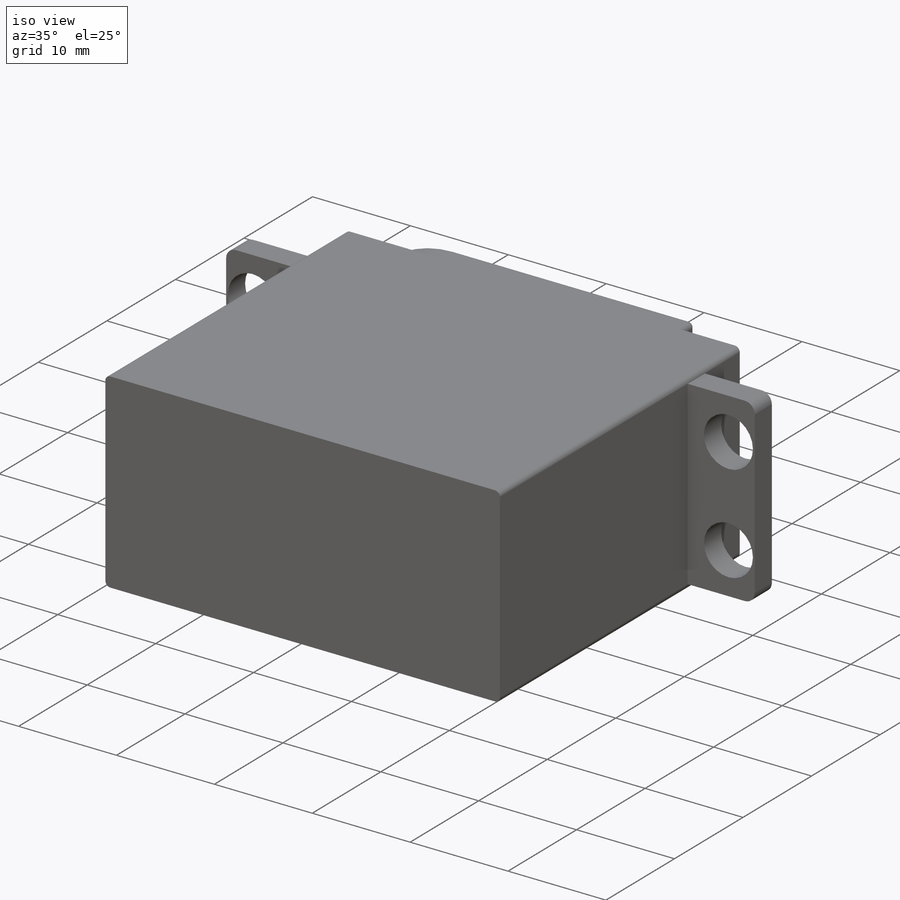
[diagram: iso view]
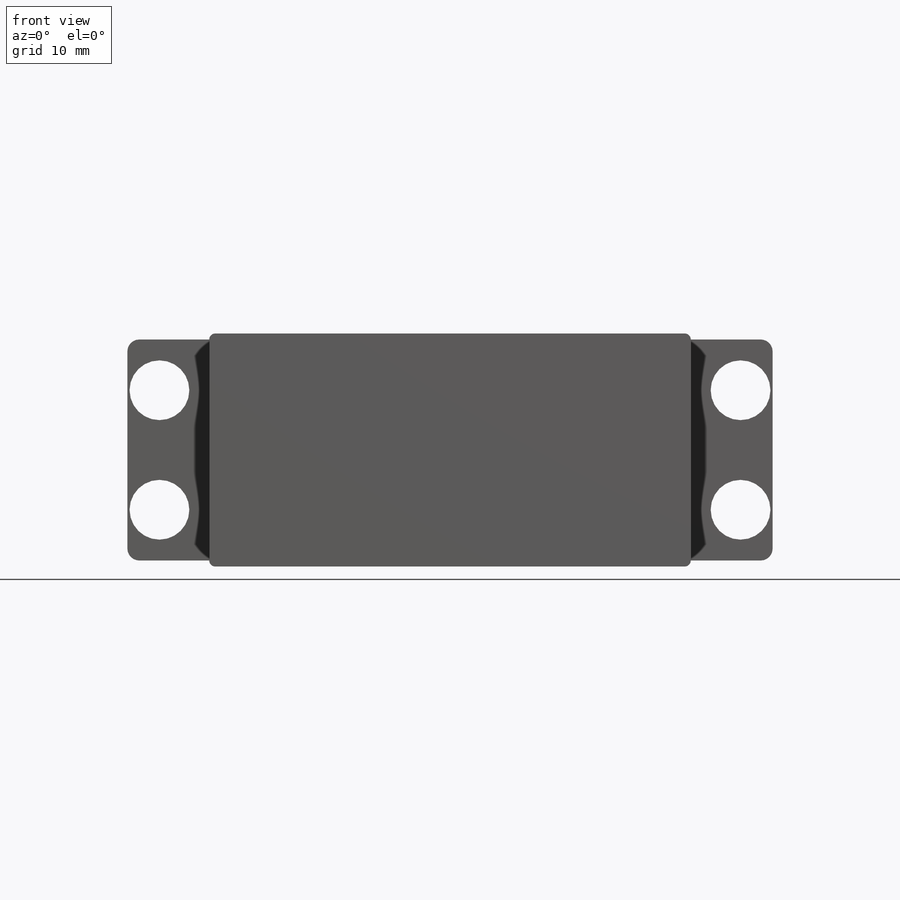
[diagram: front view]
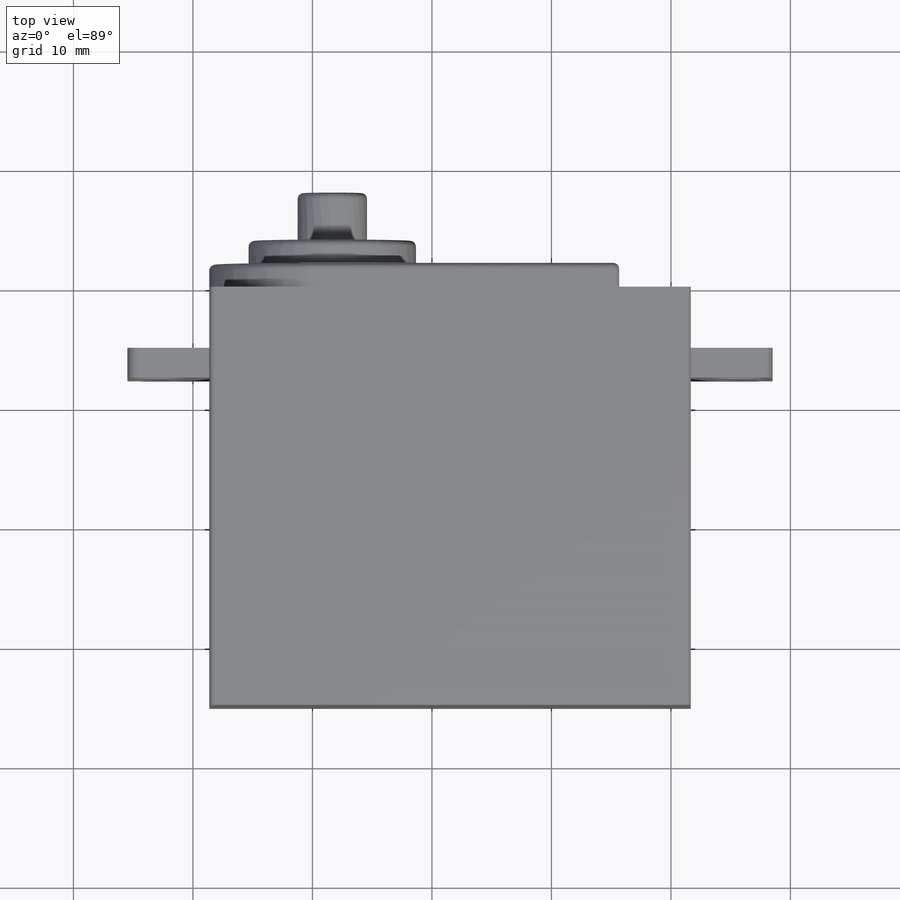
[diagram: top view]
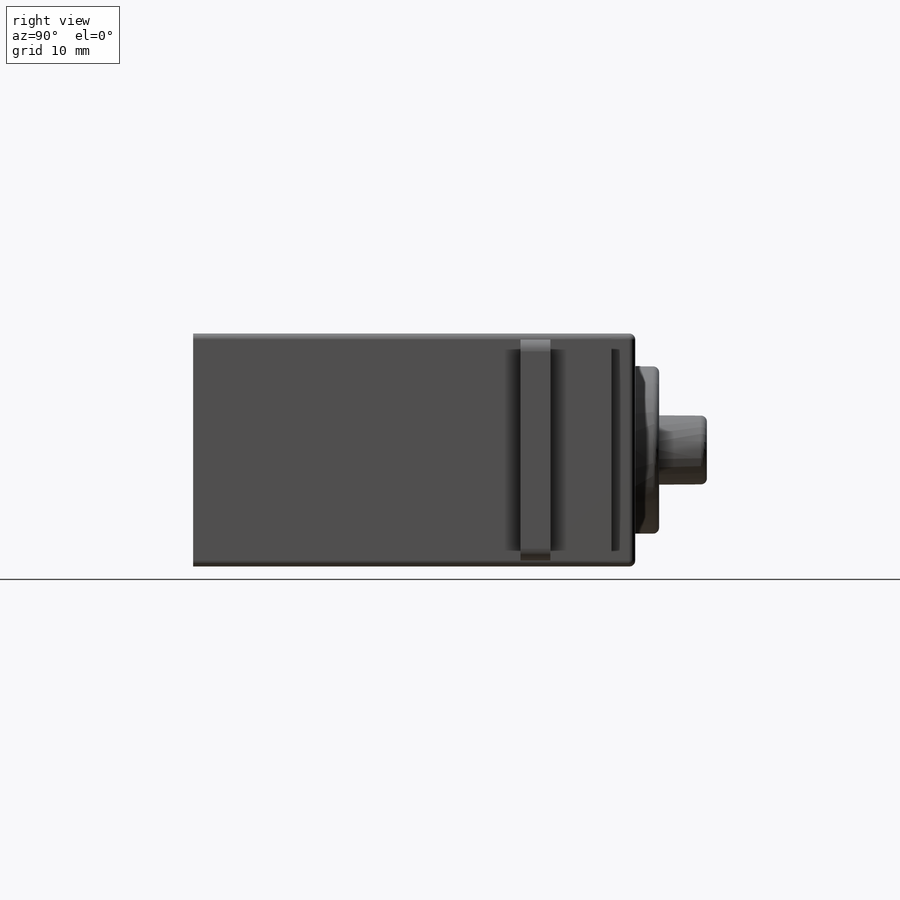
[diagram: right view]
SOLIDWORKS PART (.sldprt)
format: sldprt  version: not decoded by parser v0  size: 342,528 bytes
history: native  units: mm
features: sketch x7, fillet x7, extrude x5, plane x4, cut_extrude x2, material x1, mirror x1 (+10 scaffold rows collapsed)
feature tree (37):
  scaffold x10  (default folders/planes/origin — collapsed)
  material  "材质 <未指定>"
  plane  "前视基准面"
  plane  "上视基准面"
  plane  "右视基准面"
  sketch  "草图1"  dims[D3=0.5mm D4=0.5mm D5=0.5mm D6=0.5mm D1=19.5mm D2=40.3mm]
  extrude  "凸台-拉伸1"  Depth=35mm
  sketch  "草图2"  dims[c1.D2=0.5mm c1.D4=0.5mm c1.D6=5.8mm c1.D7=3.0mm c1.D1=9.75mm c2.D2=6.0mm c2.D3=9.75mm c2.D5=10.3mm]
  extrude  "凸台-拉伸2"  Depth=2mm
  sketch  "草图10"  dims[c1.D2=3.0mm c1.D3=5.8mm c1.D5=14.0mm c2.D2=5.8mm c2.D1=9.75mm c2.D4=10.3mm]
  extrude  "凸台-拉伸6"  Depth=2mm
  sketch  "草图15"  dims[D1=5.8mm]
  extrude  "凸台-拉伸7"  Depth=4mm
  sketch  "草图16"  dims[D1=~1.084096mm]
  cut_extrude  "切除-拉伸1"  Depth=4mm
  sketch  "草图17"  dims[D1=2.5mm D2=5.1mm]
  extrude  "凸台-拉伸9"  Depth=6.85mm
  plane  "基准面2"  Offset=20.15mm
  sketch  "草图19"  dims[c1.D1=~1.45456mm c1.D2=5.0mm c2.D1=10.0mm c2.D3=20.15mm c2.D4=24.315mm c2.D5=4.25mm c2.D6=4.25mm]
  cut_extrude  "切除-拉伸2"  [1 undecoded]
  mirror  "镜向3"
  fillet  "圆角1"  Radius=1mm
  fillet  "圆角2"  Radius=1mm
  fillet  "圆角3"  Radius=1mm
  fillet  "圆角4"  Radius=1mm
  fillet  "圆角5"  Radius=0.5mm
  fillet  "圆角6"  Radius=0.5mm
  fillet  "圆角7"  Radius=0.5mm
decode coverage: 20 of 22 modeling features carry decoded parameters
note: ~ marks probable driven/reference dimensions
note: 1 parameter value undecoded
note: suppression state not decoded; provenance and decode notes live in map.json
